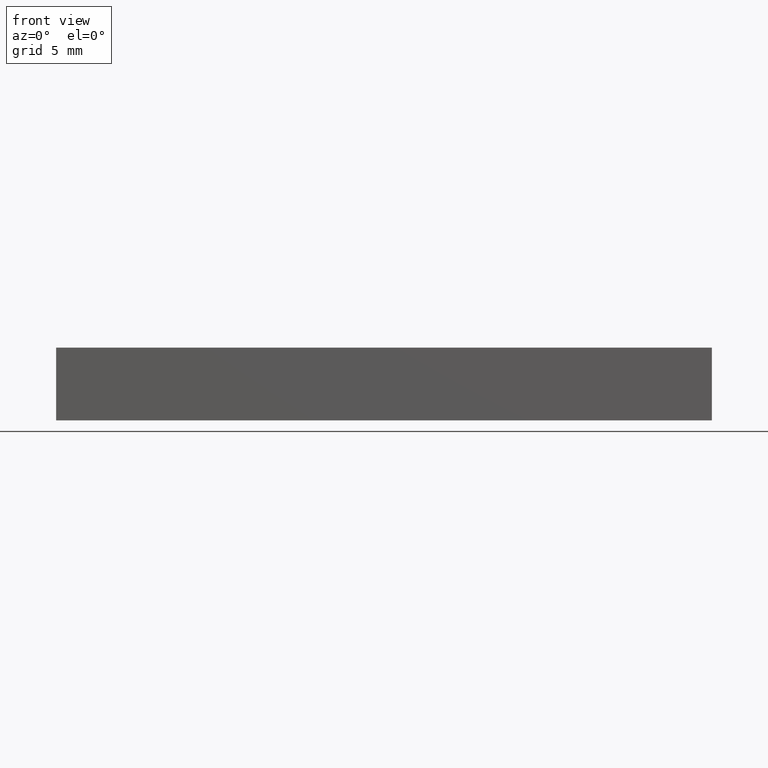
[diagram: clean part render]
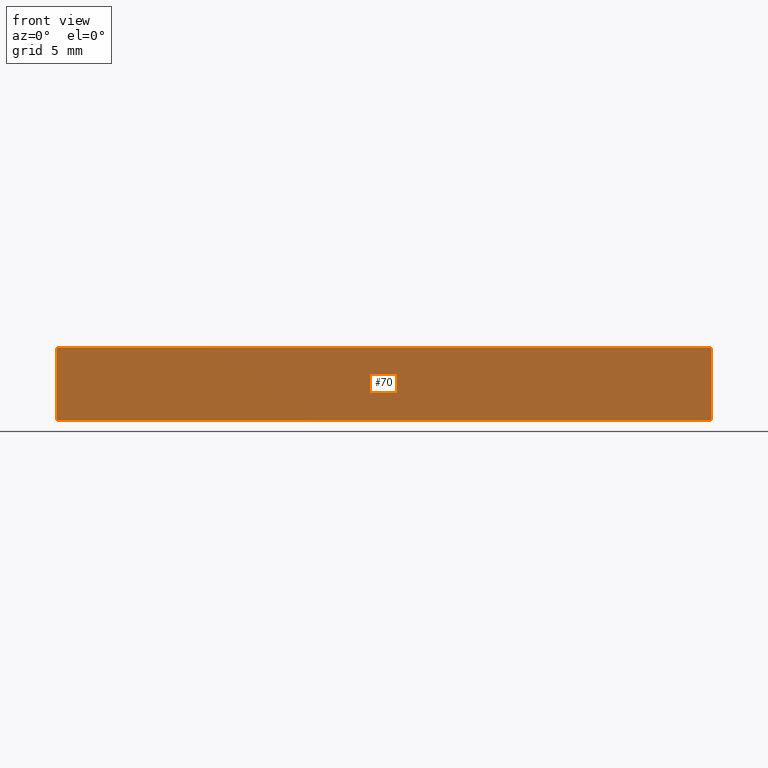
[diagram: same view with one face highlighted and labeled with its STEP entity id]
A machine part, front view. The second image highlights one B-rep face of the part: STEP entity #70.
In plain terms, the highlighted planar face has unit normal (-0, 1, 0).
Its self-contained STEP definition (entity closure, byte-faithful):
#13 = CARTESIAN_POINT ( 'NONE',  ( 15.03124999999999645, -6.499999999999990230, 0.0000000000000000000 ) ) ;
#17 = CARTESIAN_POINT ( 'NONE',  ( -11.96875000000000178, -6.499999999999999112, 3.000000000000000000 ) ) ;
#27 = DIRECTION ( 'NONE',  ( 1.000000000000000000, 3.212450881438532241E-16, 0.0000000000000000000 ) ) ;
#35 = AXIS2_PLACEMENT_3D ( 'NONE', #50, #112, #225 ) ;
#42 = EDGE_CURVE ( 'NONE', #142, #117, #114, .T. ) ;
#45 = VECTOR ( 'NONE', #234, 1000.000000000000000 ) ;
#49 = CARTESIAN_POINT ( 'NONE',  ( 15.03124999999999645, -6.499999999999990230, 3.000000000000000000 ) ) ;
#50 = CARTESIAN_POINT ( 'NONE',  ( -11.96875000000000178, -6.499999999999999112, 3.000000000000000000 ) ) ;
#66 = ORIENTED_EDGE ( 'NONE', *, *, #119, .T. ) ;
#68 = CARTESIAN_POINT ( 'NONE',  ( 15.03124999999999645, -6.499999999999990230, 3.000000000000000000 ) ) ;
#70 = ADVANCED_FACE ( 'NONE', ( #118 ), #163, .F. ) ;
#77 = ORIENTED_EDGE ( 'NONE', *, *, #144, .F. ) ;
#84 = CARTESIAN_POINT ( 'NONE',  ( -11.96875000000000178, -6.499999999999999112, 3.000000000000000000 ) ) ;
#92 = VECTOR ( 'NONE', #130, 1000.000000000000000 ) ;
#96 = VERTEX_POINT ( 'NONE', #49 ) ;
#97 = LINE ( 'NONE', #68, #228 ) ;
#112 = DIRECTION ( 'NONE',  ( -3.212450881438532241E-16, 1.000000000000000000, 0.0000000000000000000 ) ) ;
#114 = LINE ( 'NONE', #192, #158 ) ;
#117 = VERTEX_POINT ( 'NONE', #13 ) ;
#118 = FACE_OUTER_BOUND ( 'NONE', #207, .T. ) ;
#119 = EDGE_CURVE ( 'NONE', #152, #142, #201, .T. ) ;
#130 = DIRECTION ( 'NONE',  ( -0.0000000000000000000, -0.0000000000000000000, -1.000000000000000000 ) ) ;
#133 = ORIENTED_EDGE ( 'NONE', *, *, #42, .T. ) ;
#136 = ORIENTED_EDGE ( 'NONE', *, *, #211, .F. ) ;
#142 = VERTEX_POINT ( 'NONE', #160 ) ;
#144 = EDGE_CURVE ( 'NONE', #152, #96, #214, .T. ) ;
#147 = CARTESIAN_POINT ( 'NONE',  ( -11.96875000000000178, -6.499999999999999112, 3.000000000000000000 ) ) ;
#152 = VERTEX_POINT ( 'NONE', #17 ) ;
#158 = VECTOR ( 'NONE', #27, 1000.000000000000000 ) ;
#160 = CARTESIAN_POINT ( 'NONE',  ( -11.96875000000000178, -6.499999999999999112, 0.0000000000000000000 ) ) ;
#163 = PLANE ( 'NONE',  #35 ) ;
#192 = CARTESIAN_POINT ( 'NONE',  ( -11.96875000000000178, -6.499999999999999112, 0.0000000000000000000 ) ) ;
#201 = LINE ( 'NONE', #84, #92 ) ;
#207 = EDGE_LOOP ( 'NONE', ( #133, #136, #77, #66 ) ) ;
#211 = EDGE_CURVE ( 'NONE', #96, #117, #97, .T. ) ;
#214 = LINE ( 'NONE', #147, #45 ) ;
#225 = DIRECTION ( 'NONE',  ( -1.000000000000000000, -3.212450881438532241E-16, 0.0000000000000000000 ) ) ;
#228 = VECTOR ( 'NONE', #232, 1000.000000000000000 ) ;
#232 = DIRECTION ( 'NONE',  ( -0.0000000000000000000, -0.0000000000000000000, -1.000000000000000000 ) ) ;
#234 = DIRECTION ( 'NONE',  ( 1.000000000000000000, 3.212450881438532241E-16, 0.0000000000000000000 ) ) ;